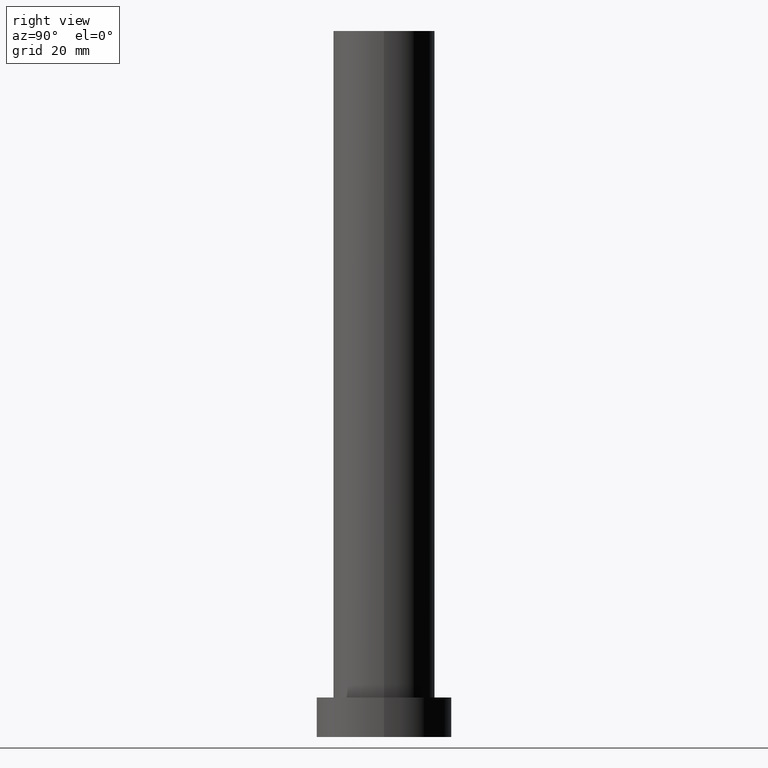
[diagram: clean part render]
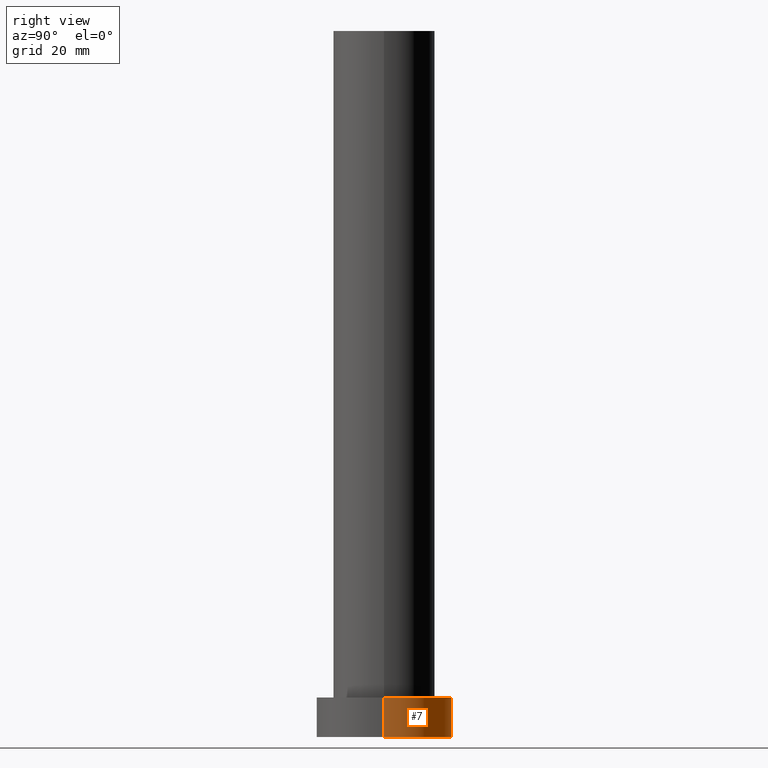
[diagram: same view with one face highlighted and labeled with its STEP entity id]
A machine part, right view. The second image highlights one B-rep face of the part: STEP entity #7.
In plain terms, the highlighted cylindrical surface (partial cylindrical patch) has radius 12 mm, axis along (-0, -0, -1).
Its self-contained STEP definition (entity closure, byte-faithful):
#3 = CARTESIAN_POINT ( 'NONE',  ( 12.00000000000000178, 1.469576158976824144E-15, 7.000000000000000000 ) ) ;
#7 = ADVANCED_FACE ( 'NONE', ( #255 ), #152, .T. ) ;
#9 = EDGE_LOOP ( 'NONE', ( #215, #230, #41, #127 ) ) ;
#11 = AXIS2_PLACEMENT_3D ( 'NONE', #115, #154, #50 ) ;
#14 = AXIS2_PLACEMENT_3D ( 'NONE', #224, #23, #70 ) ;
#23 = DIRECTION ( 'NONE',  ( 0.000000000000000000, 0.000000000000000000, 1.000000000000000000 ) ) ;
#24 = EDGE_CURVE ( 'NONE', #240, #232, #178, .T. ) ;
#28 = LINE ( 'NONE', #47, #36 ) ;
#32 = EDGE_CURVE ( 'NONE', #39, #196, #103, .T. ) ;
#36 = VECTOR ( 'NONE', #53, 1000.000000000000000 ) ;
#39 = VERTEX_POINT ( 'NONE', #187 ) ;
#41 = ORIENTED_EDGE ( 'NONE', *, *, #32, .T. ) ;
#47 = CARTESIAN_POINT ( 'NONE',  ( -12.00000000000000178, 0.000000000000000000, 7.000000000000000000 ) ) ;
#50 = DIRECTION ( 'NONE',  ( 1.000000000000000000, 0.000000000000000000, 0.000000000000000000 ) ) ;
#53 = DIRECTION ( 'NONE',  ( -0.000000000000000000, -0.000000000000000000, -1.000000000000000000 ) ) ;
#57 = CARTESIAN_POINT ( 'NONE',  ( -12.00000000000000178, 0.000000000000000000, 0.000000000000000000 ) ) ;
#70 = DIRECTION ( 'NONE',  ( 1.000000000000000000, 0.000000000000000000, 0.000000000000000000 ) ) ;
#76 = CARTESIAN_POINT ( 'NONE',  ( 12.00000000000000178, 1.469576158976824144E-15, 7.000000000000000000 ) ) ;
#79 = EDGE_CURVE ( 'NONE', #240, #39, #179, .T. ) ;
#103 = CIRCLE ( 'NONE', #11, 12.00000000000000178 ) ;
#107 = AXIS2_PLACEMENT_3D ( 'NONE', #220, #156, #158 ) ;
#115 = CARTESIAN_POINT ( 'NONE',  ( 0.000000000000000000, 0.000000000000000000, 0.000000000000000000 ) ) ;
#127 = ORIENTED_EDGE ( 'NONE', *, *, #173, .F. ) ;
#152 = CYLINDRICAL_SURFACE ( 'NONE', #107, 12.00000000000000178 ) ;
#154 = DIRECTION ( 'NONE',  ( 0.000000000000000000, 0.000000000000000000, 1.000000000000000000 ) ) ;
#156 = DIRECTION ( 'NONE',  ( -0.000000000000000000, -0.000000000000000000, -1.000000000000000000 ) ) ;
#158 = DIRECTION ( 'NONE',  ( -1.000000000000000000, 0.000000000000000000, 0.000000000000000000 ) ) ;
#166 = VECTOR ( 'NONE', #229, 1000.000000000000000 ) ;
#173 = EDGE_CURVE ( 'NONE', #232, #196, #28, .T. ) ;
#178 = CIRCLE ( 'NONE', #14, 12.00000000000000178 ) ;
#179 = LINE ( 'NONE', #76, #166 ) ;
#187 = CARTESIAN_POINT ( 'NONE',  ( 12.00000000000000178, 1.469576158976824144E-15, 0.000000000000000000 ) ) ;
#192 = CARTESIAN_POINT ( 'NONE',  ( -12.00000000000000178, 0.000000000000000000, 7.000000000000000000 ) ) ;
#196 = VERTEX_POINT ( 'NONE', #57 ) ;
#215 = ORIENTED_EDGE ( 'NONE', *, *, #24, .F. ) ;
#220 = CARTESIAN_POINT ( 'NONE',  ( 0.000000000000000000, 0.000000000000000000, 7.000000000000000000 ) ) ;
#224 = CARTESIAN_POINT ( 'NONE',  ( 0.000000000000000000, 0.000000000000000000, 7.000000000000000000 ) ) ;
#229 = DIRECTION ( 'NONE',  ( -0.000000000000000000, -0.000000000000000000, -1.000000000000000000 ) ) ;
#230 = ORIENTED_EDGE ( 'NONE', *, *, #79, .T. ) ;
#232 = VERTEX_POINT ( 'NONE', #192 ) ;
#240 = VERTEX_POINT ( 'NONE', #3 ) ;
#255 = FACE_OUTER_BOUND ( 'NONE', #9, .T. ) ;